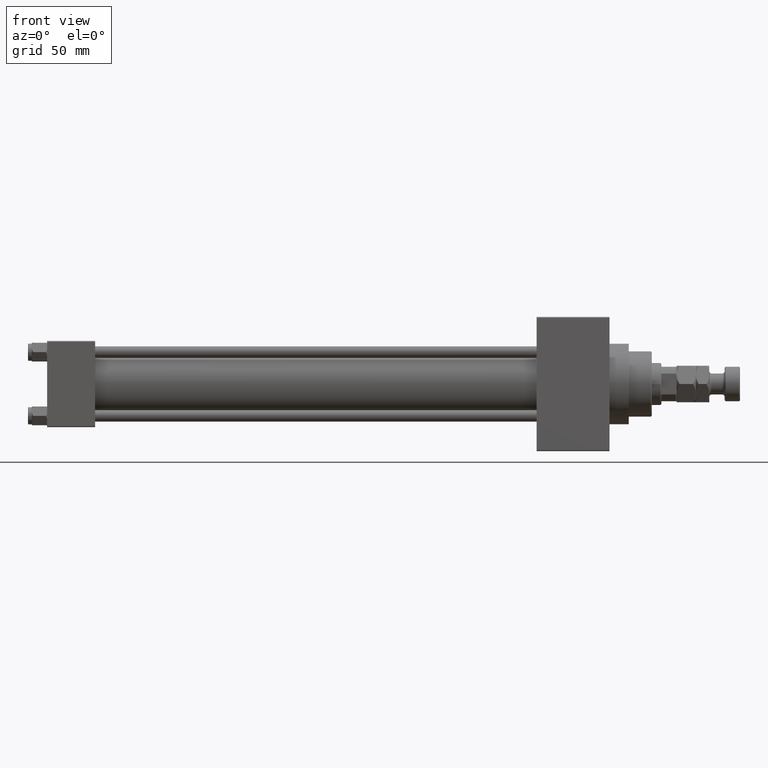
[diagram: clean part render]
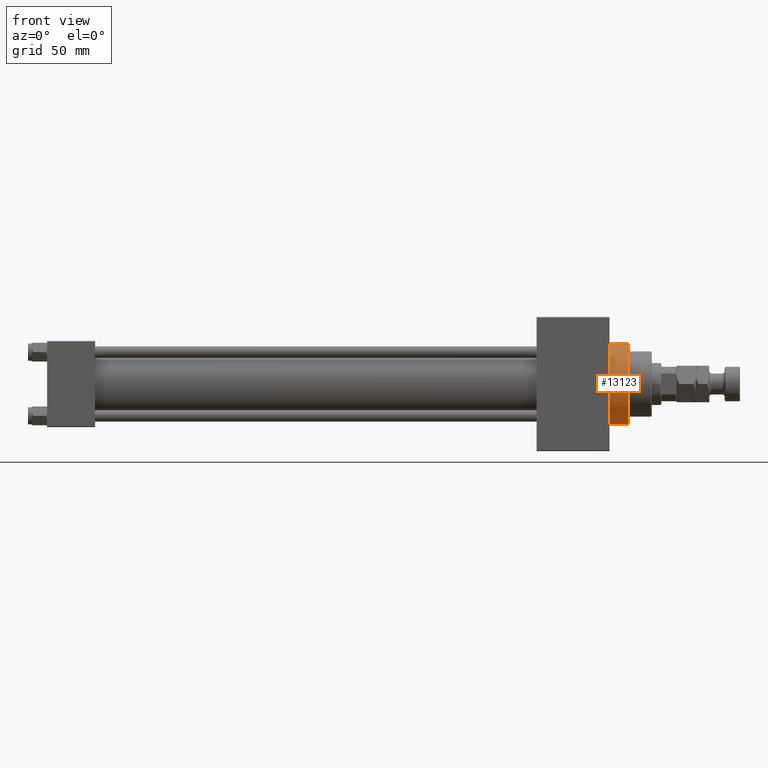
[diagram: same view with one face highlighted and labeled with its STEP entity id]
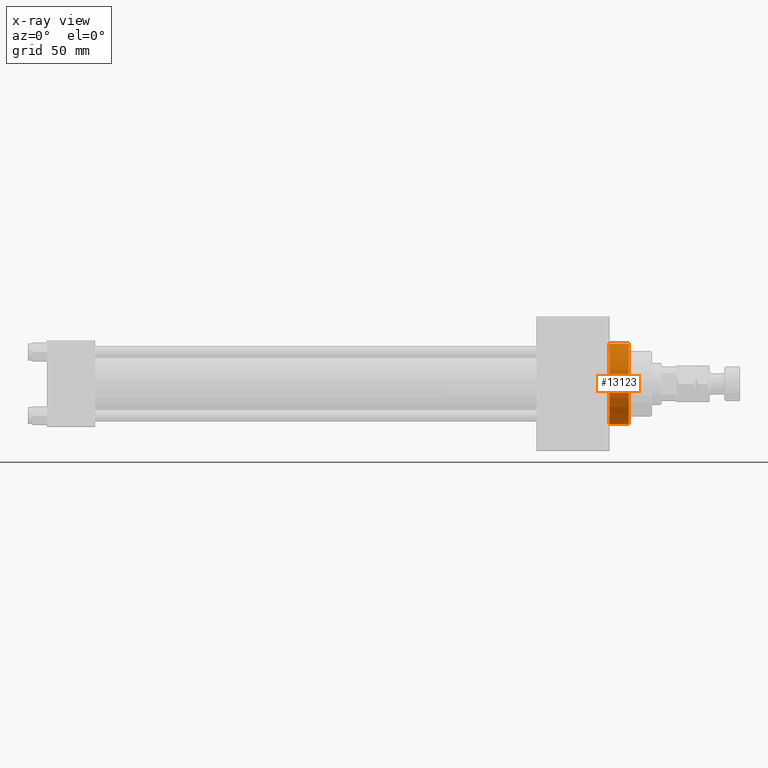
[diagram: x-ray of the same camera — body ghosted, the highlighted face saturated]
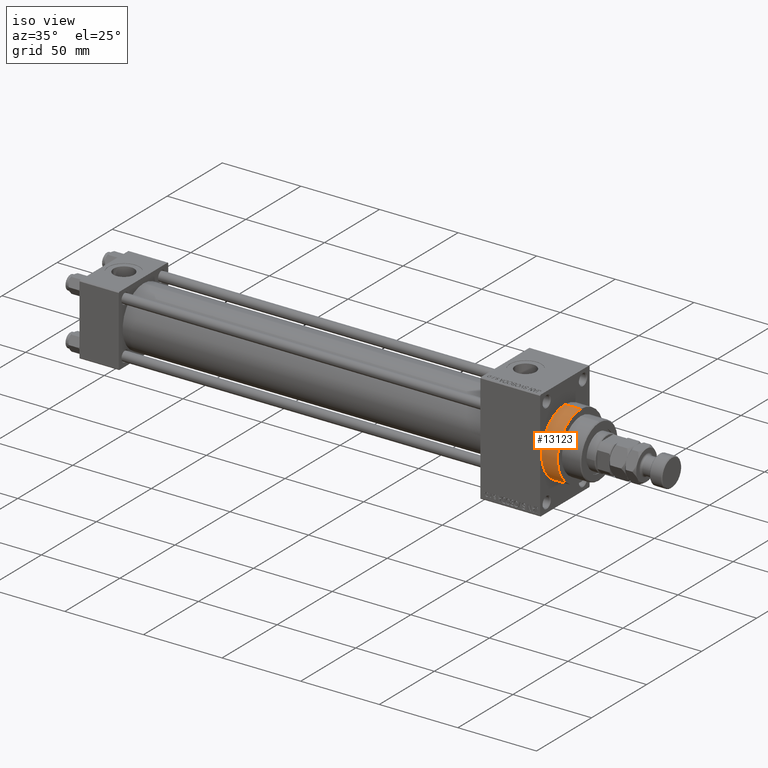
[diagram: same view with one face highlighted and labeled with its STEP entity id]
A machine part, front view. The second image highlights one B-rep face of the part: STEP entity #13123.
The next image is the same camera in x-ray: the body ghosted, the highlighted face saturated — about 0% of this face is hidden behind the body in this view.
A second angle (iso view) of the same face is appended — the face is thin or edge-on in the first view.
In plain terms, the highlighted cylindrical surface (partial cylindrical patch) has radius 21 mm, axis along (-1, -0, -0).
Its self-contained STEP definition (entity closure, byte-faithful):
#47 = VERTEX_POINT ( 'NONE', #42867 ) ;
#111 = CARTESIAN_POINT ( 'NONE',  ( 303.0000000000000000, 2.571758278209441661E-15, -21.00000000000000000 ) ) ;
#1886 = DIRECTION ( 'NONE',  ( -1.000000000000000000, -0.000000000000000000, -0.000000000000000000 ) ) ;
#2648 = CARTESIAN_POINT ( 'NONE',  ( 303.0000000000000000, 0.000000000000000000, 0.000000000000000000 ) ) ;
#5949 = CARTESIAN_POINT ( 'NONE',  ( 303.0000000000000000, 2.571758278209441661E-15, -21.00000000000000000 ) ) ;
#6749 = DIRECTION ( 'NONE',  ( 0.000000000000000000, 0.000000000000000000, 1.000000000000000000 ) ) ;
#10287 = ORIENTED_EDGE ( 'NONE', *, *, #48731, .F. ) ;
#10541 = CIRCLE ( 'NONE', #27782, 21.00000000000000000 ) ;
#13123 = ADVANCED_FACE ( 'NONE', ( #13920 ), #49641, .T. ) ;
#13427 = CARTESIAN_POINT ( 'NONE',  ( 303.0000000000000000, 0.000000000000000000, 21.00000000000000000 ) ) ;
#13677 = LINE ( 'NONE', #13427, #35544 ) ;
#13800 = DIRECTION ( 'NONE',  ( 1.000000000000000000, 0.000000000000000000, 0.000000000000000000 ) ) ;
#13920 = FACE_OUTER_BOUND ( 'NONE', #24579, .T. ) ;
#14603 = CIRCLE ( 'NONE', #34324, 21.00000000000000000 ) ;
#15215 = VECTOR ( 'NONE', #25459, 1000.000000000000000 ) ;
#15314 = ORIENTED_EDGE ( 'NONE', *, *, #40431, .T. ) ;
#21508 = DIRECTION ( 'NONE',  ( 0.000000000000000000, 0.000000000000000000, -1.000000000000000000 ) ) ;
#22309 = DIRECTION ( 'NONE',  ( 1.000000000000000000, 0.000000000000000000, 0.000000000000000000 ) ) ;
#24486 = DIRECTION ( 'NONE',  ( -1.000000000000000000, -0.000000000000000000, -0.000000000000000000 ) ) ;
#24579 = EDGE_LOOP ( 'NONE', ( #10287, #25290, #15314, #28014 ) ) ;
#25290 = ORIENTED_EDGE ( 'NONE', *, *, #27456, .F. ) ;
#25459 = DIRECTION ( 'NONE',  ( -1.000000000000000000, -0.000000000000000000, -0.000000000000000000 ) ) ;
#26075 = EDGE_CURVE ( 'NONE', #47, #31611, #14603, .T. ) ;
#27456 = EDGE_CURVE ( 'NONE', #48306, #35971, #10541, .T. ) ;
#27782 = AXIS2_PLACEMENT_3D ( 'NONE', #44655, #13800, #21508 ) ;
#28014 = ORIENTED_EDGE ( 'NONE', *, *, #26075, .T. ) ;
#31611 = VERTEX_POINT ( 'NONE', #36014 ) ;
#32166 = LINE ( 'NONE', #5949, #15215 ) ;
#34324 = AXIS2_PLACEMENT_3D ( 'NONE', #41835, #22309, #37989 ) ;
#35544 = VECTOR ( 'NONE', #24486, 1000.000000000000000 ) ;
#35971 = VERTEX_POINT ( 'NONE', #111 ) ;
#36014 = CARTESIAN_POINT ( 'NONE',  ( 293.0000000000000000, 2.571758278209441661E-15, -21.00000000000000000 ) ) ;
#37232 = AXIS2_PLACEMENT_3D ( 'NONE', #2648, #1886, #6749 ) ;
#37403 = CARTESIAN_POINT ( 'NONE',  ( 303.0000000000000000, 0.000000000000000000, 21.00000000000000000 ) ) ;
#37989 = DIRECTION ( 'NONE',  ( 0.000000000000000000, 0.000000000000000000, -1.000000000000000000 ) ) ;
#40431 = EDGE_CURVE ( 'NONE', #48306, #47, #13677, .T. ) ;
#41835 = CARTESIAN_POINT ( 'NONE',  ( 293.0000000000000000, 0.000000000000000000, 0.000000000000000000 ) ) ;
#42867 = CARTESIAN_POINT ( 'NONE',  ( 293.0000000000000000, 0.000000000000000000, 21.00000000000000000 ) ) ;
#44655 = CARTESIAN_POINT ( 'NONE',  ( 303.0000000000000000, 0.000000000000000000, 0.000000000000000000 ) ) ;
#48306 = VERTEX_POINT ( 'NONE', #37403 ) ;
#48731 = EDGE_CURVE ( 'NONE', #35971, #31611, #32166, .T. ) ;
#49641 = CYLINDRICAL_SURFACE ( 'NONE', #37232, 21.00000000000000000 ) ;